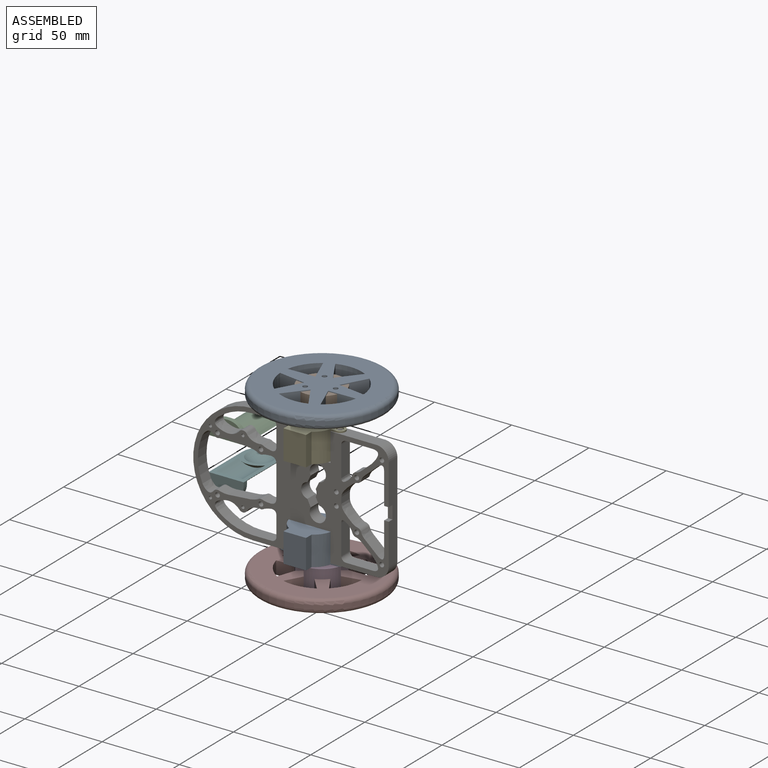
[diagram: assembled view]
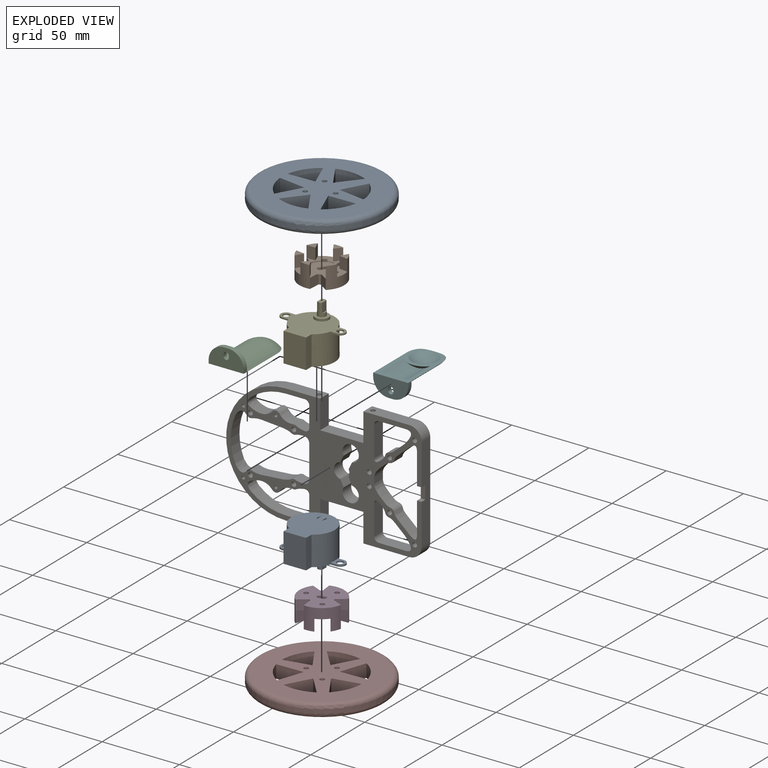
[diagram: exploded view]
GUIDED TOUR — MATED ASSEMBLY (Onshape document bb97a9f97f64db0c315202b3, AutoMate assembly bb97a9f97f64db0c315202b3_c42094e2cdb3be51faf808b6_38f69e9d4352762452701cad_default)

This assembly has 9 components, labeled P0..P8 below (a component is one placed occurrence of a part; the same part can appear more than once), held together by 10 mates. A mate is a constraint between two components; its type names the relative motion it leaves free:
  FASTENED — locks the two components together rigidly (no relative motion),
  REVOLUTE — leaves rotation about the listed axis free (a hinge).
Axis/direction vectors are unit vectors and 'through' points are millimeter coordinates, both in the assembly's world frame.

MATES
  1. FASTENED "Fastened 3": P6 <-> P2, direction (0.000, 1.000, 0.000) through (0.00, -35.30, 7.35) mm
  2. FASTENED "Fastened 1": P5 <-> P6, direction (0.000, -1.000, 0.000) through (0.00, -35.30, -29.05) mm
  3. REVOLUTE "Revolute 3": P0 <-> P6, axis (0.000, 0.000, 1.000) through (76.60, -39.30, -49.46) mm
  4. FASTENED "Fastened 2": P7 <-> P3, direction (0.000, 0.000, -1.000) through (59.10, -31.30, -60.46) mm
  5. REVOLUTE "Revolute 2": P0 <-> P6, axis (0.000, 0.000, 1.000) through (41.60, -39.30, -49.46) mm
  6. REVOLUTE "Revolute 4": P4 <-> P6, axis (0.000, 0.000, -1.000) through (76.60, -39.30, 27.76) mm
  7. REVOLUTE "Revolute 5": P4 <-> P6, axis (0.000, 0.000, -1.000) through (41.60, -39.30, 27.76) mm
  8. FASTENED "Fastened 2": P8 <-> P1, direction (0.000, 0.000, 1.000) through (59.10, -31.30, 38.76) mm
  9. REVOLUTE "Revolute 1": P4 <-> P1, axis (0.000, 0.000, 1.000) through (59.10, -31.30, 38.76) mm
  10. REVOLUTE "Revolute 1": P0 <-> P3, axis (0.000, 0.000, -1.000) through (59.10, -31.30, -60.46) mm

ASSEMBLY ORDER
  1. P0 — the base component [order heuristic]
  2. P3 — core [order heuristic]
  3. P7 — core [order heuristic]
  4. P6 [order verified]
  5. P4 — core [order heuristic]
  6. P1 — core [order heuristic]
  7. P8 — core [order heuristic]
  8. P2 [order verified]
  9. P5 [order verified]
Order-tag legend:
  [order verified] — this step's position reverses a verified removal order: the component was checked to insert without passing through the ones already placed.
  [order heuristic] — the first 6 components form the assembly's core: parts whose collision-free extraction could not be verified, listed in mate-graph order.

Of the 9 components, 2 carry the full construction recipe — the FeatureScript program that regenerates the part's solid from scratch; the rest are supplied as boundary geometry only.
Each toured component is shown spotlighted twice — in the assembled view, then in the exploded view, where a leader line traces a displaced component back to its assembled socket (saturated green if recipe-attached, orange if geometry-only; every other component desaturated gray) — followed by its recipe or geometry summary and the mates that hold it.
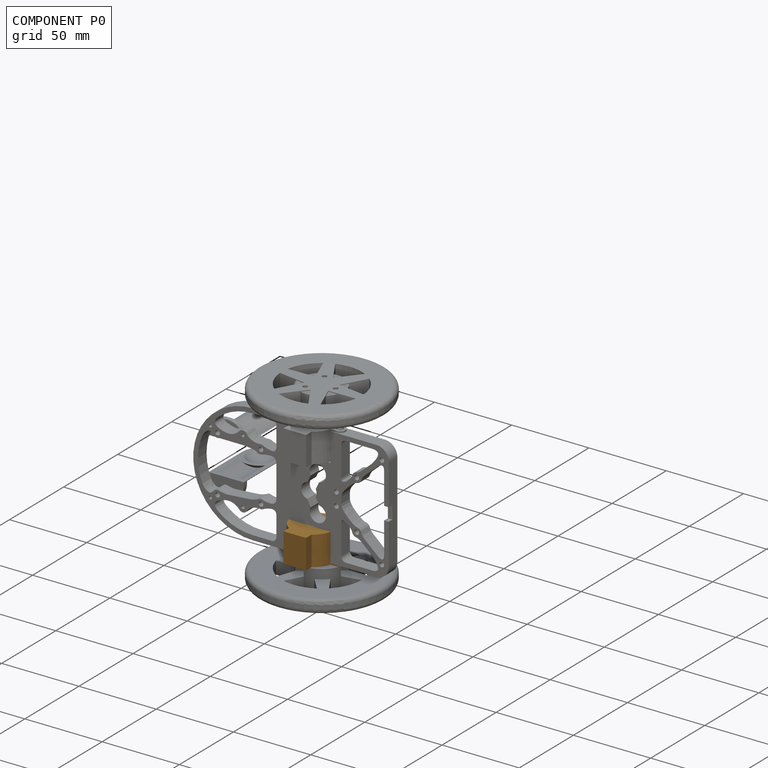
[diagram: component P0 — assembled]
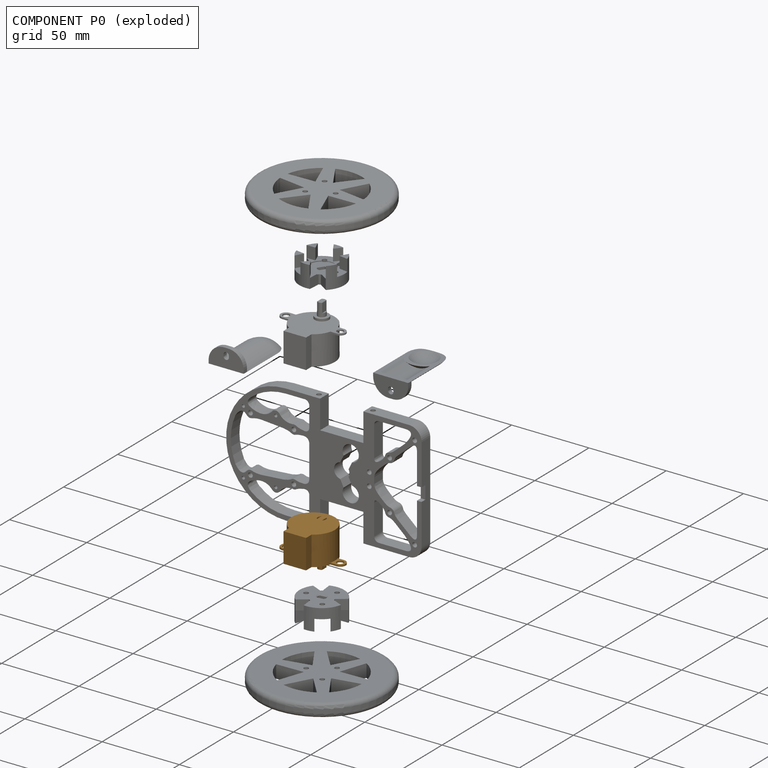
[diagram: component P0 — exploded]
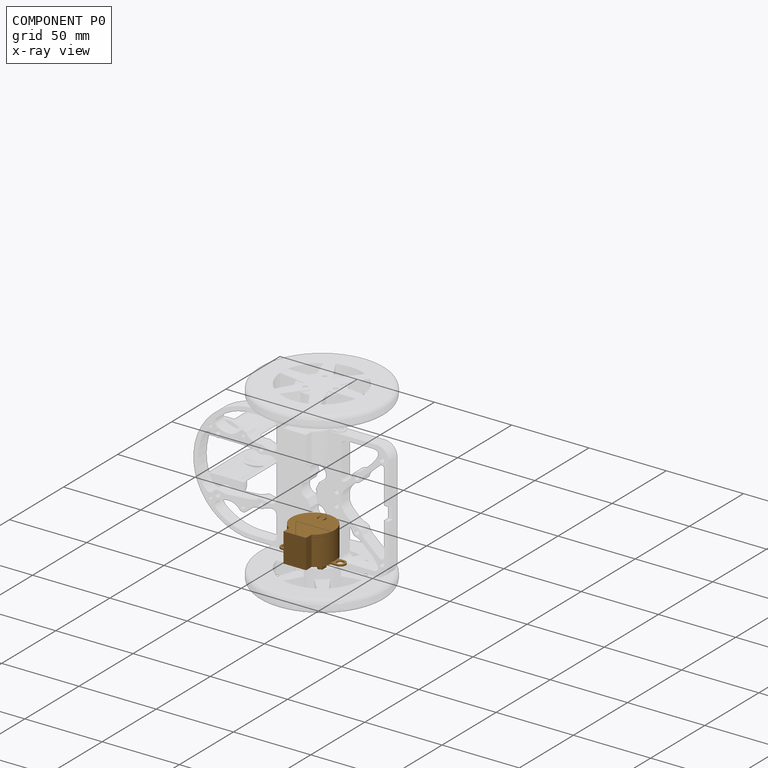
[diagram: component P0 — x-ray view]
COMPONENT P0 — geometry summary (no construction recipe available for this part):
  bounding box: 42.0 x 31.0 x 29.0 mm
  B-rep topology: 1 solid, 30 faces, 144 edges
  volume: 12910 mm^3 (34% of its bounding box)
  symmetry: mirror-symmetric across its x mid-plane
Held by: REVOLUTE mate "Revolute 3" to P6; REVOLUTE mate "Revolute 2" to P6; REVOLUTE mate "Revolute 1" to P3.
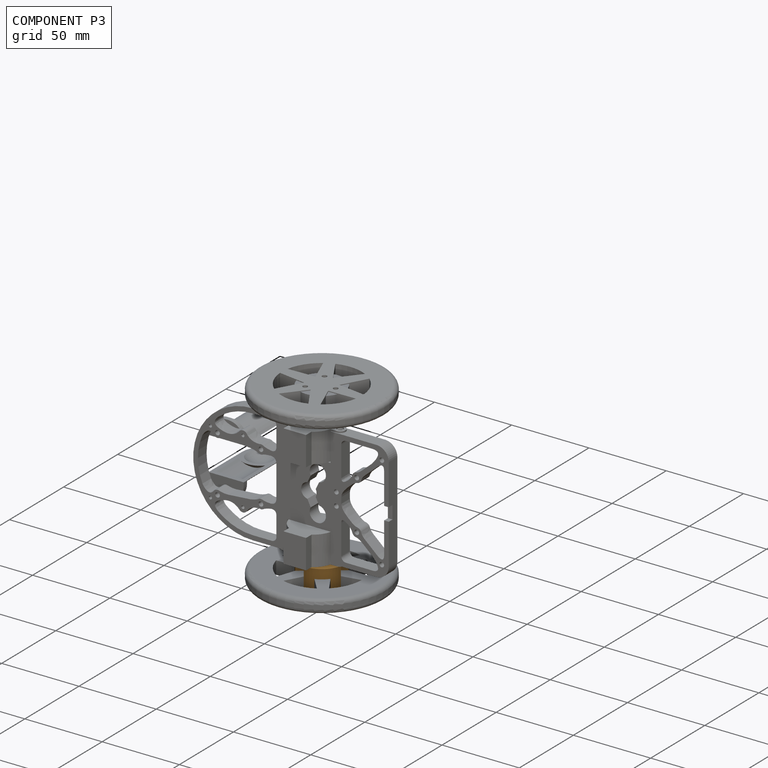
[diagram: component P3 — assembled]
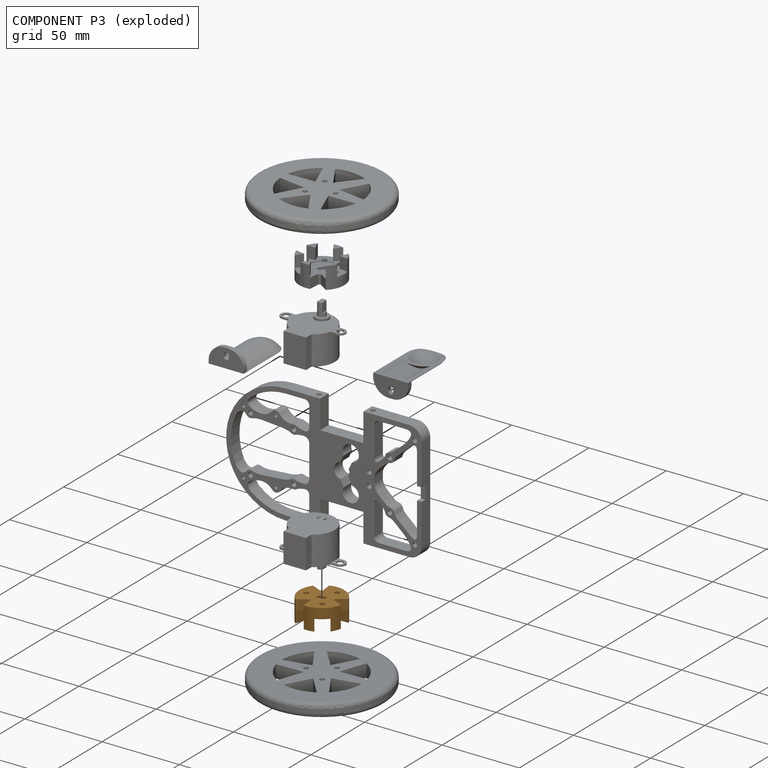
[diagram: component P3 — exploded]
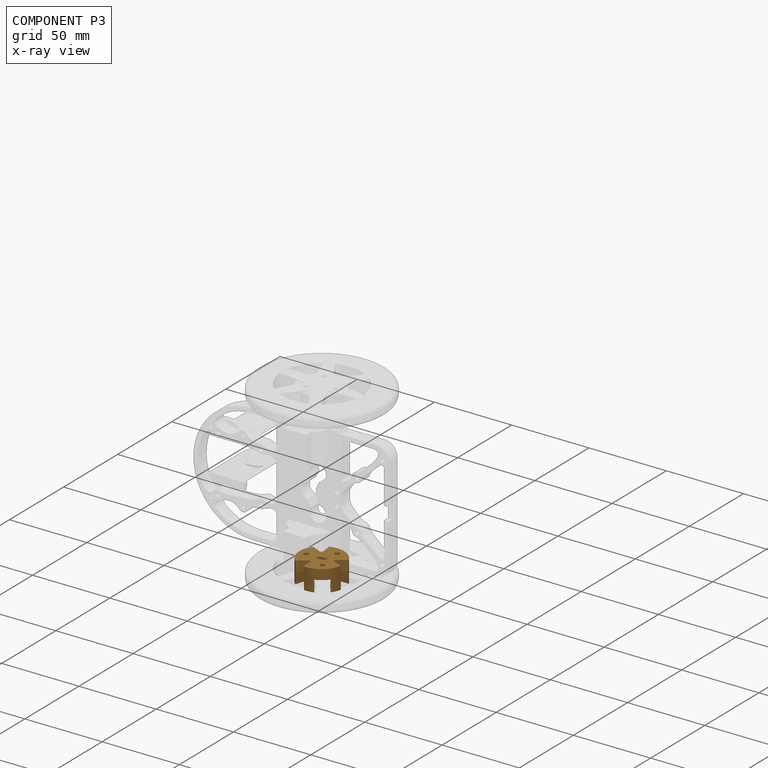
[diagram: component P3 — x-ray view]
COMPONENT P3 — geometry summary (no construction recipe available for this part):
  bounding box: 29.0 x 28.4 x 14.0 mm
  B-rep topology: 1 solid, 52 faces, 298 edges
  volume: 4022 mm^3 (35% of its bounding box)
  symmetry: mirror-symmetric across its x mid-plane
Held by: FASTENED mate "Fastened 2" to P7; REVOLUTE mate "Revolute 1" to P0.
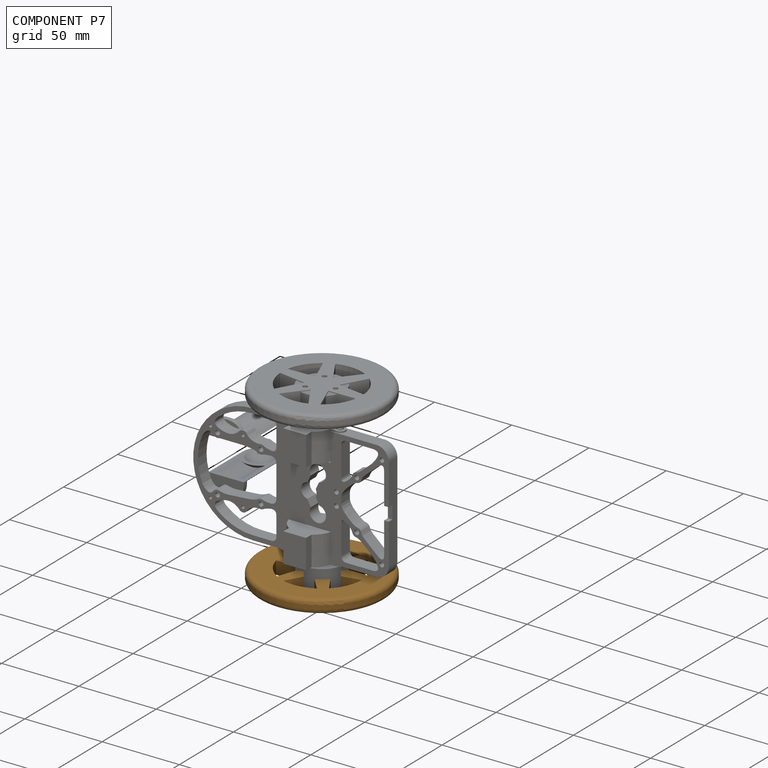
[diagram: component P7 — assembled]
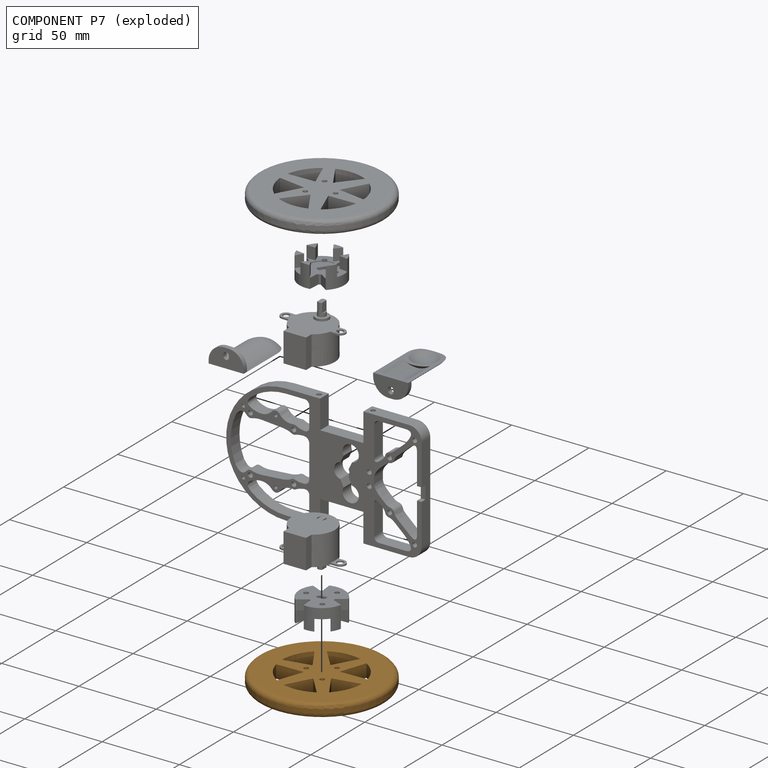
[diagram: component P7 — exploded]
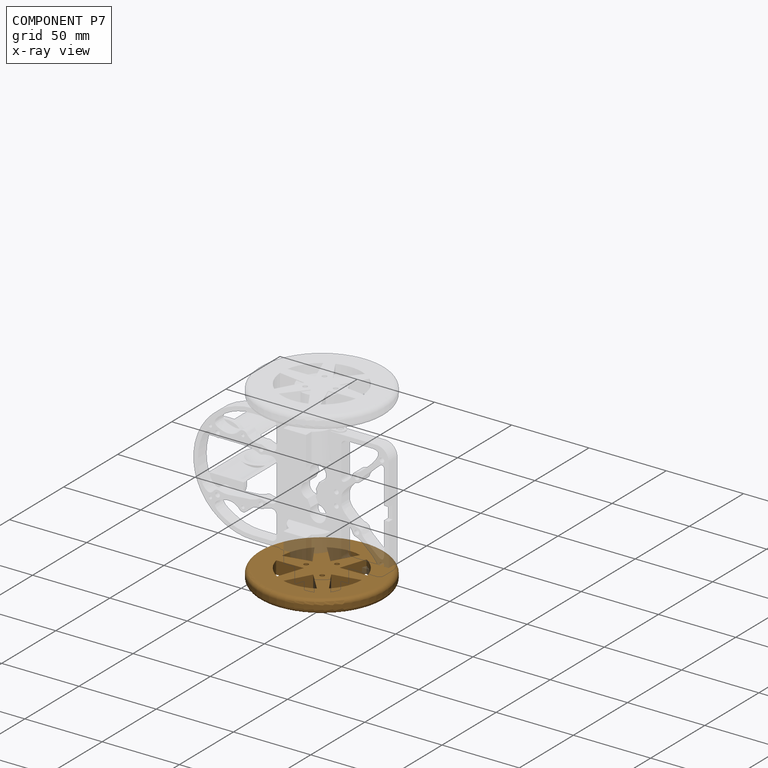
[diagram: component P7 — x-ray view]
COMPONENT P7 — geometry summary (no construction recipe available for this part):
  bounding box: 88.3 x 88.3 x 8.5 mm
  B-rep topology: 1 solid, 26 faces, 140 edges
  volume: 34452 mm^3 (52% of its bounding box)
  symmetry: 2-fold rotationally symmetric about the y axis; 3-fold rotationally symmetric about the z axis; mirror-symmetric across its x mid-plane, z mid-plane
Held by: FASTENED mate "Fastened 2" to P3.
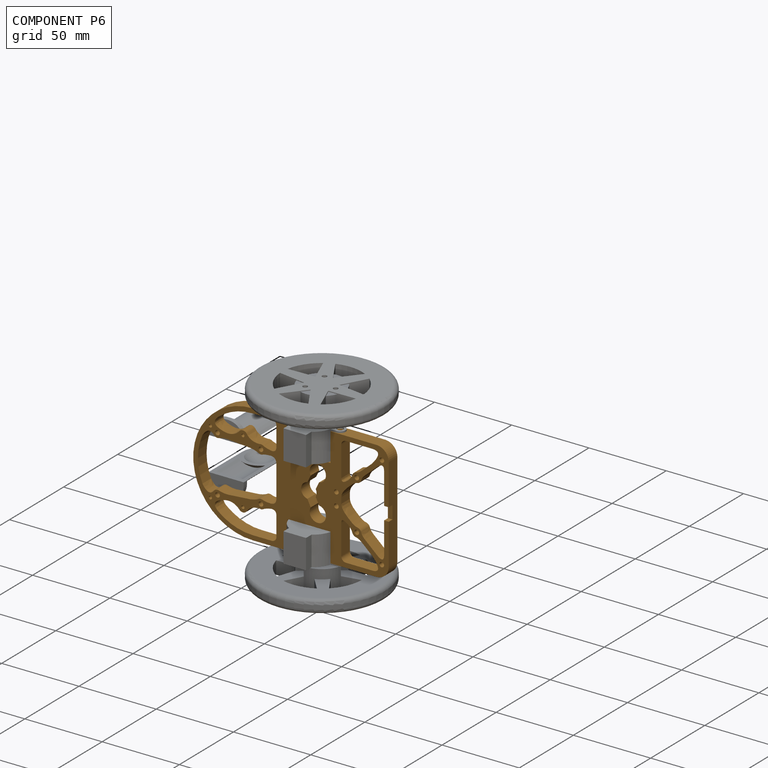
[diagram: component P6 — assembled]
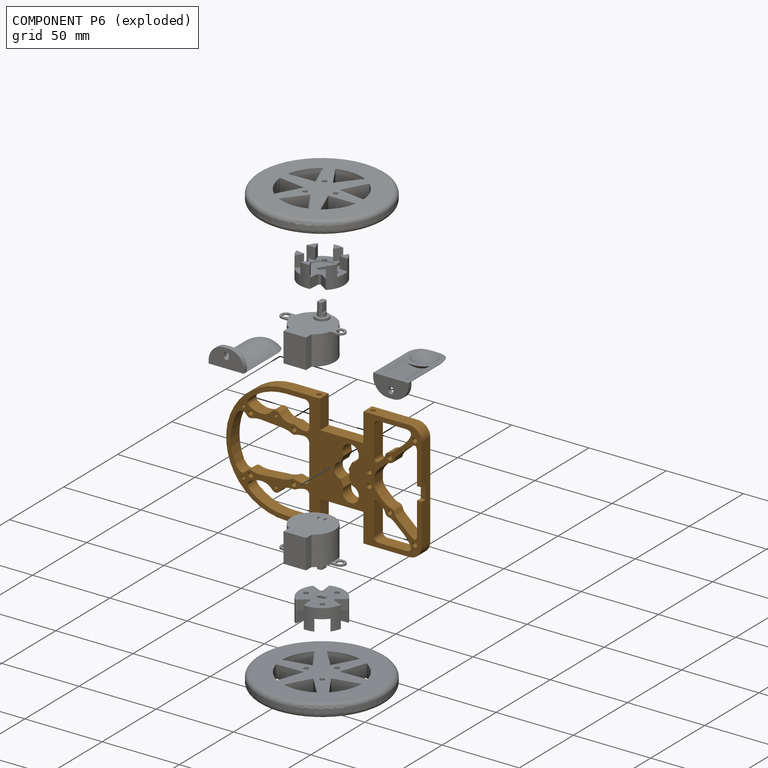
[diagram: component P6 — exploded]
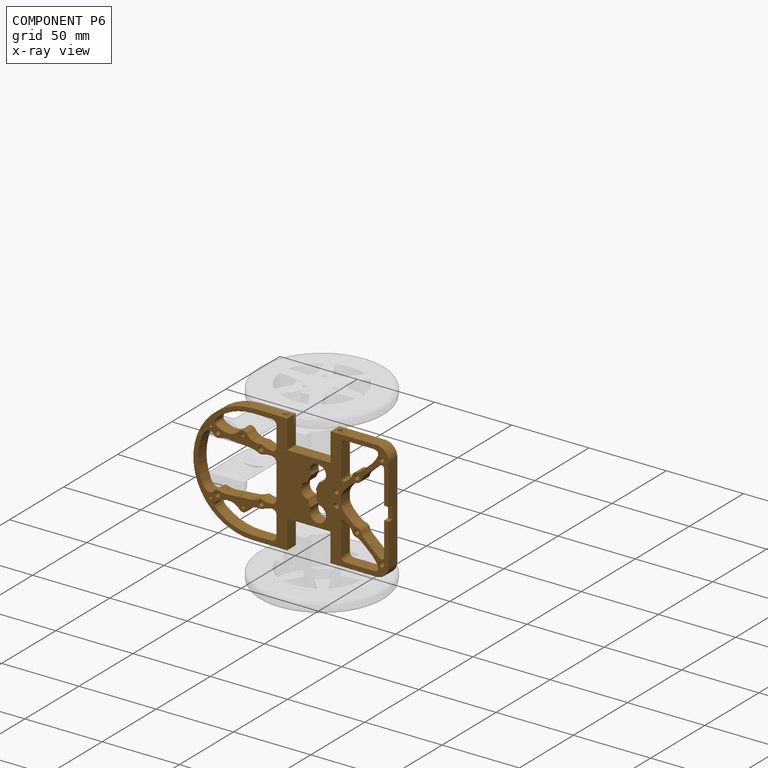
[diagram: component P6 — x-ray view]
COMPONENT P6 — geometry summary (no construction recipe available for this part):
  bounding box: 126.5 x 77.2 x 8.0 mm
  B-rep topology: 1 solid, 129 faces, 738 edges
  volume: 27150 mm^3 (35% of its bounding box)
  symmetry: mirror-symmetric across its y mid-plane
Held by: FASTENED mate "Fastened 3" to P2; FASTENED mate "Fastened 1" to P5; REVOLUTE mate "Revolute 3" to P0; REVOLUTE mate "Revolute 2" to P0; REVOLUTE mate "Revolute 4" to P4; REVOLUTE mate "Revolute 5" to P4.
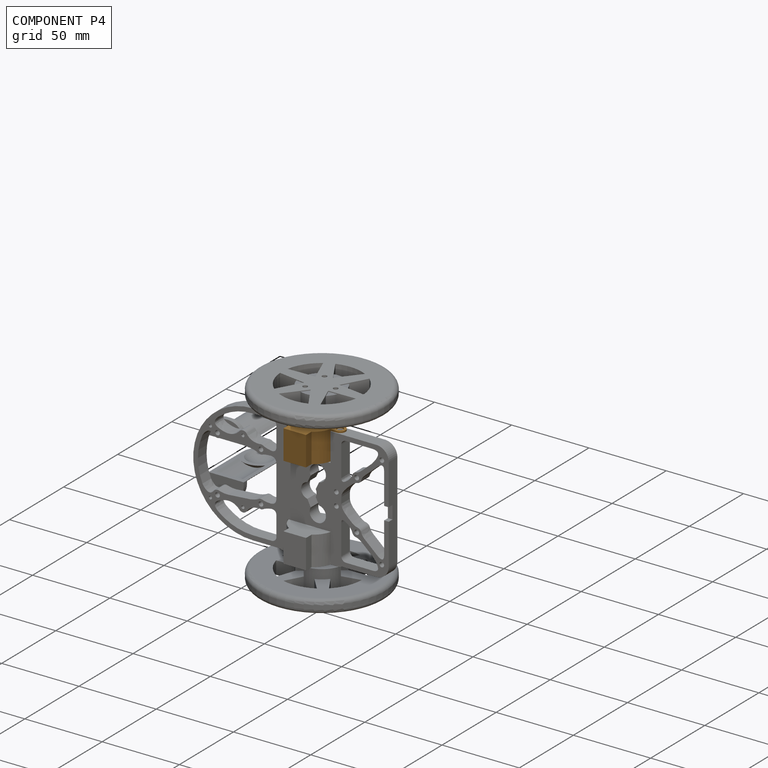
[diagram: component P4 — assembled]
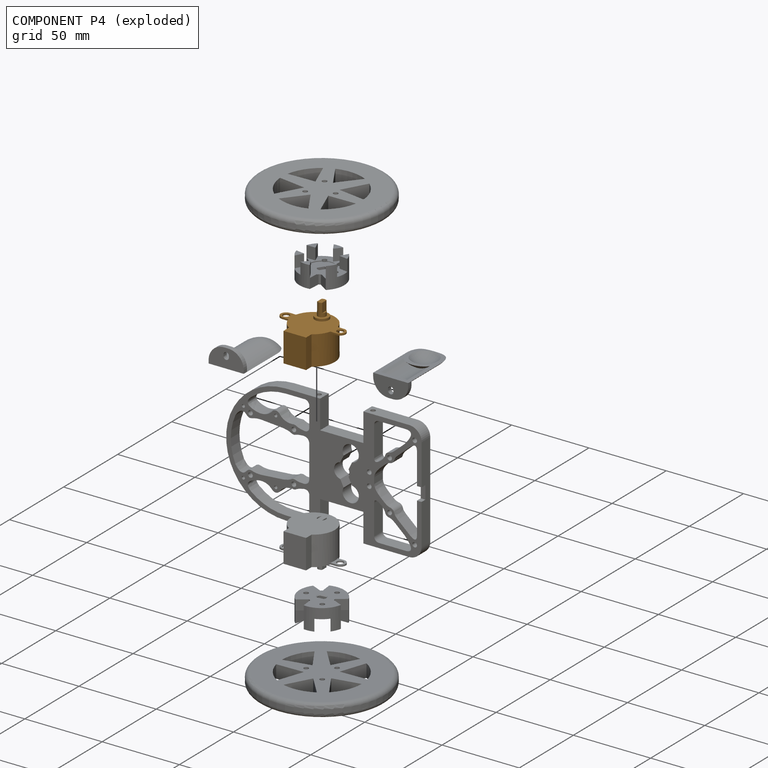
[diagram: component P4 — exploded]
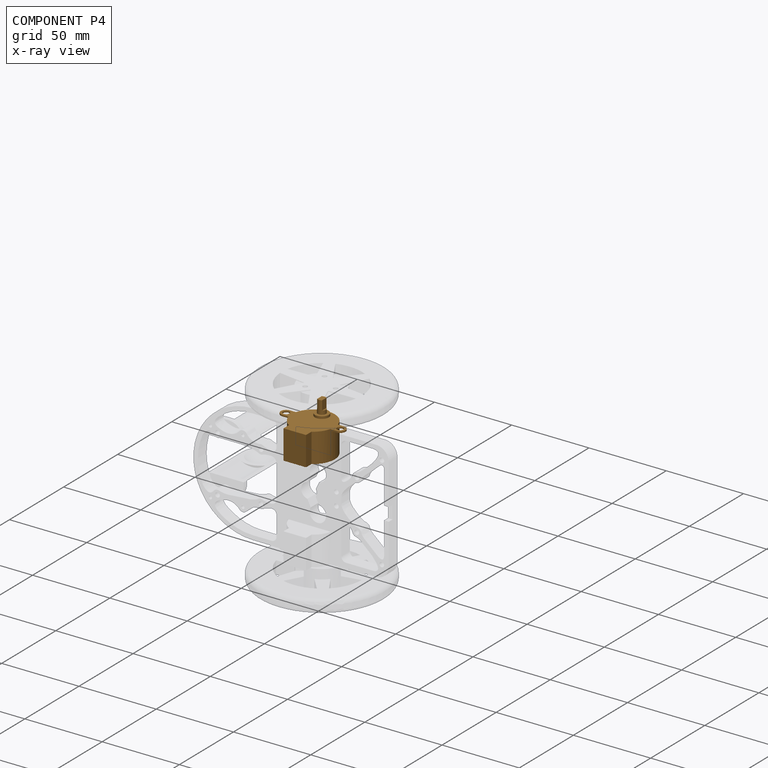
[diagram: component P4 — x-ray view]
COMPONENT P4 — geometry summary (no construction recipe available for this part):
  bounding box: 42.0 x 31.0 x 29.0 mm
  B-rep topology: 1 solid, 30 faces, 144 edges
  volume: 12910 mm^3 (34% of its bounding box)
  symmetry: mirror-symmetric across its x mid-plane
Held by: REVOLUTE mate "Revolute 4" to P6; REVOLUTE mate "Revolute 5" to P6; REVOLUTE mate "Revolute 1" to P1.
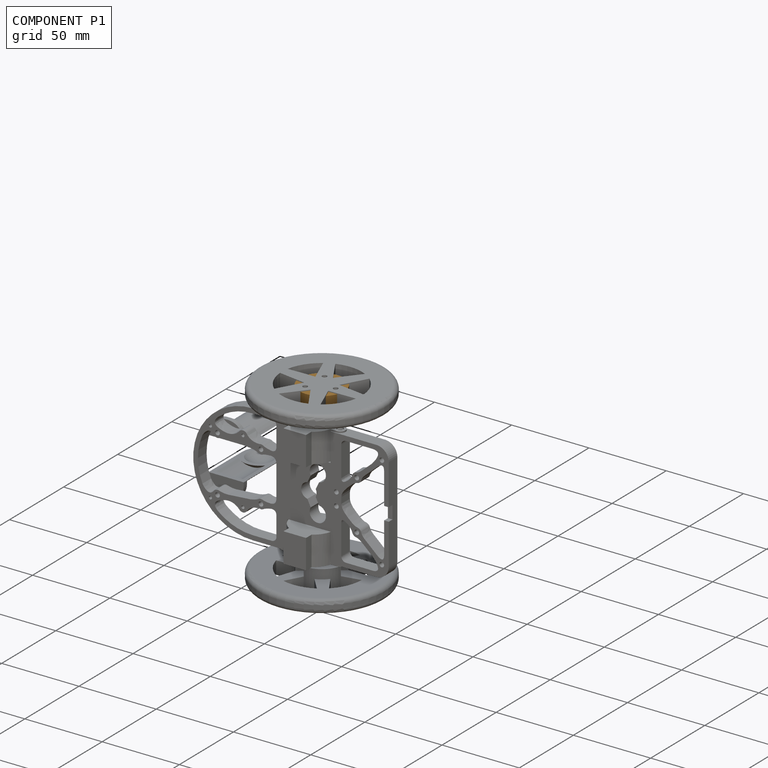
[diagram: component P1 — assembled]
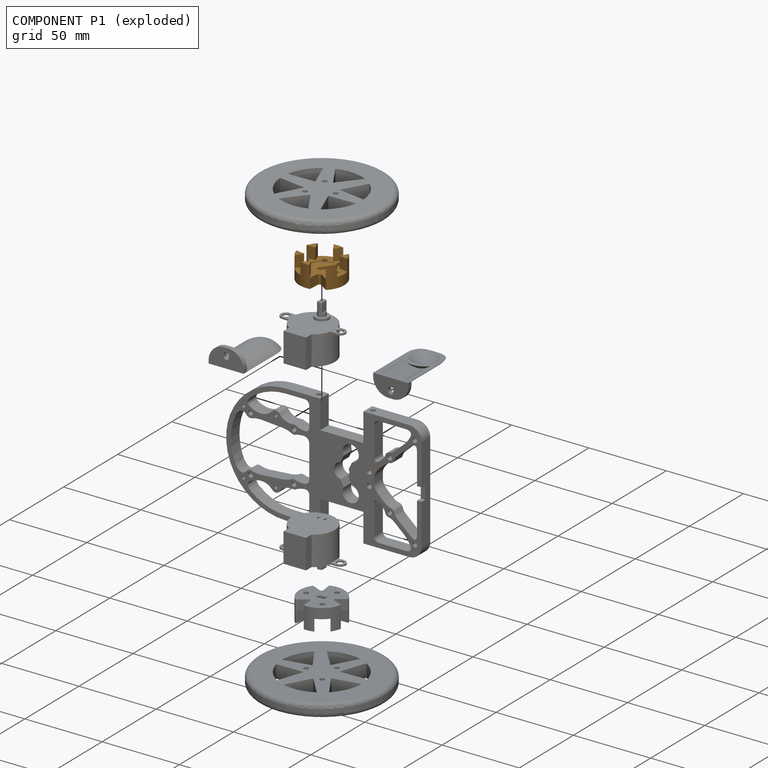
[diagram: component P1 — exploded]
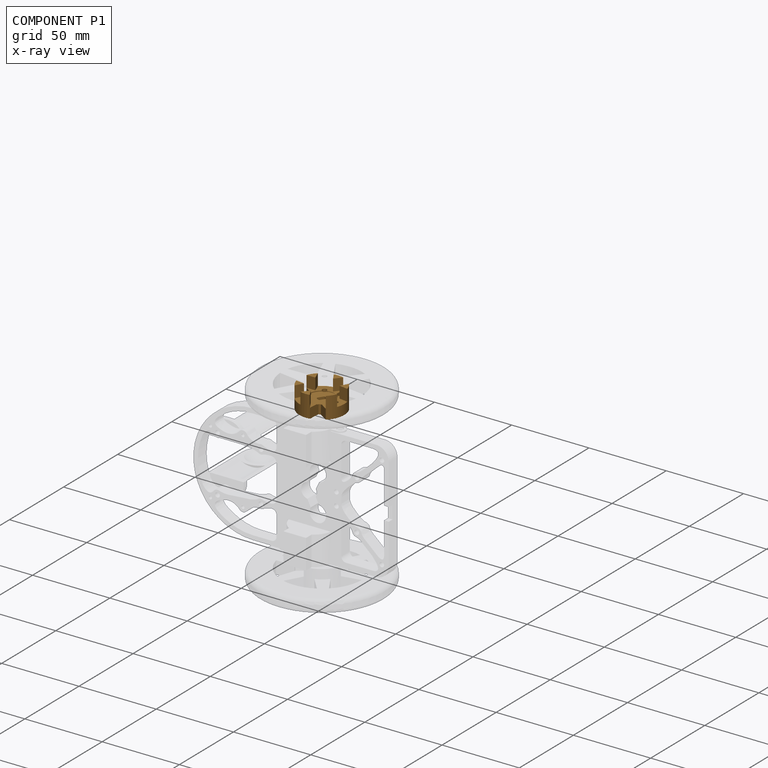
[diagram: component P1 — x-ray view]
COMPONENT P1 — geometry summary (no construction recipe available for this part):
  bounding box: 29.0 x 28.4 x 14.0 mm
  B-rep topology: 1 solid, 52 faces, 298 edges
  volume: 4022 mm^3 (35% of its bounding box)
  symmetry: mirror-symmetric across its x mid-plane
Held by: FASTENED mate "Fastened 2" to P8; REVOLUTE mate "Revolute 1" to P4.
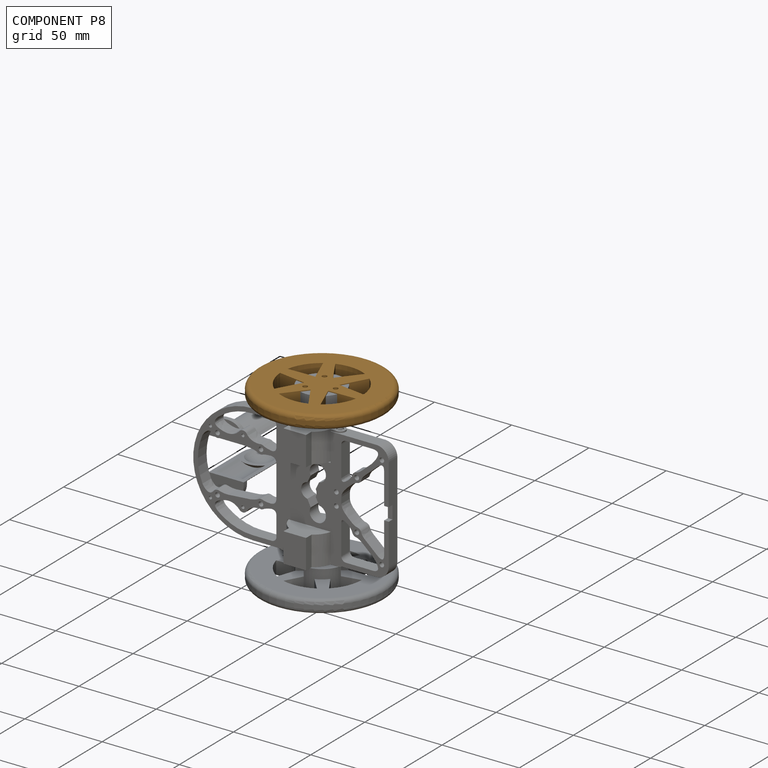
[diagram: component P8 — assembled]
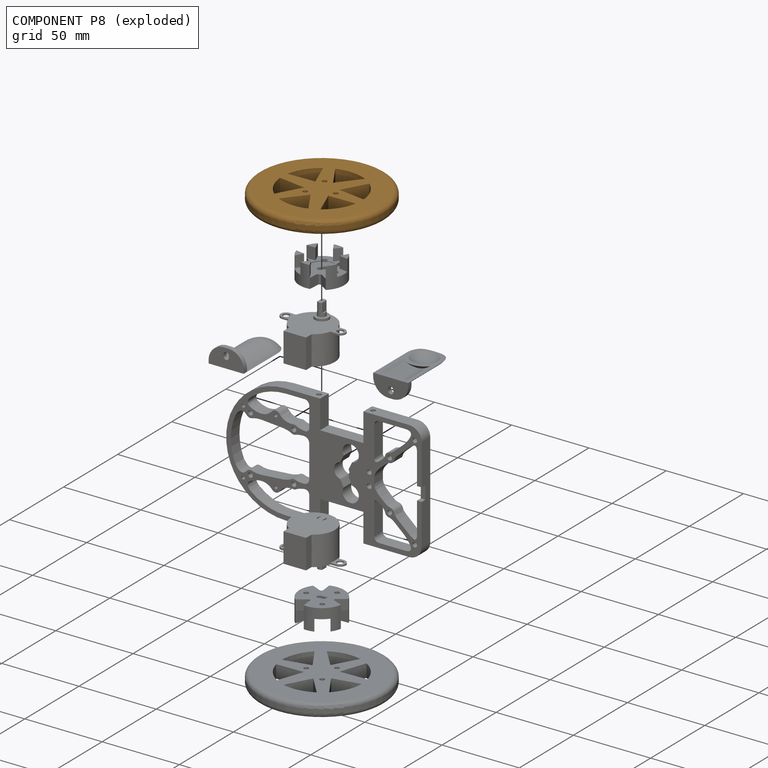
[diagram: component P8 — exploded]
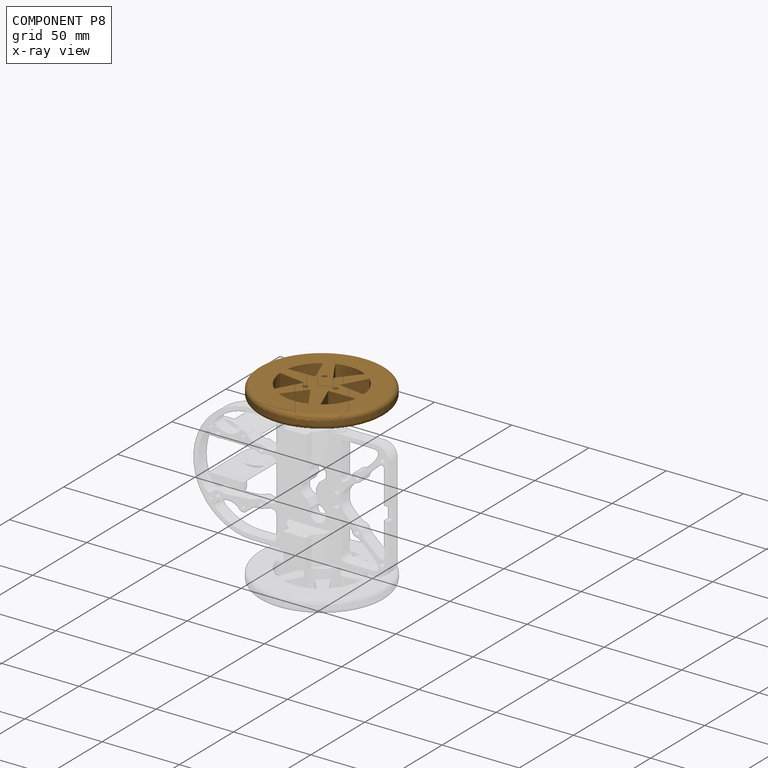
[diagram: component P8 — x-ray view]
COMPONENT P8 — geometry summary (no construction recipe available for this part):
  bounding box: 88.3 x 88.3 x 8.5 mm
  B-rep topology: 1 solid, 26 faces, 140 edges
  volume: 34452 mm^3 (52% of its bounding box)
  symmetry: 2-fold rotationally symmetric about the y axis; 3-fold rotationally symmetric about the z axis; mirror-symmetric across its x mid-plane, z mid-plane
Held by: FASTENED mate "Fastened 2" to P1.
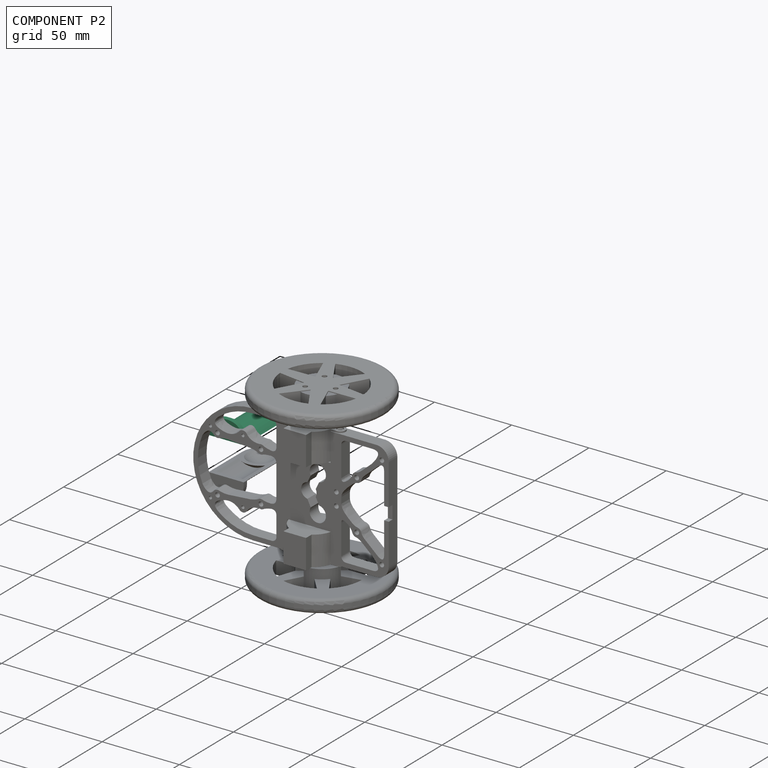
[diagram: component P2 — assembled]
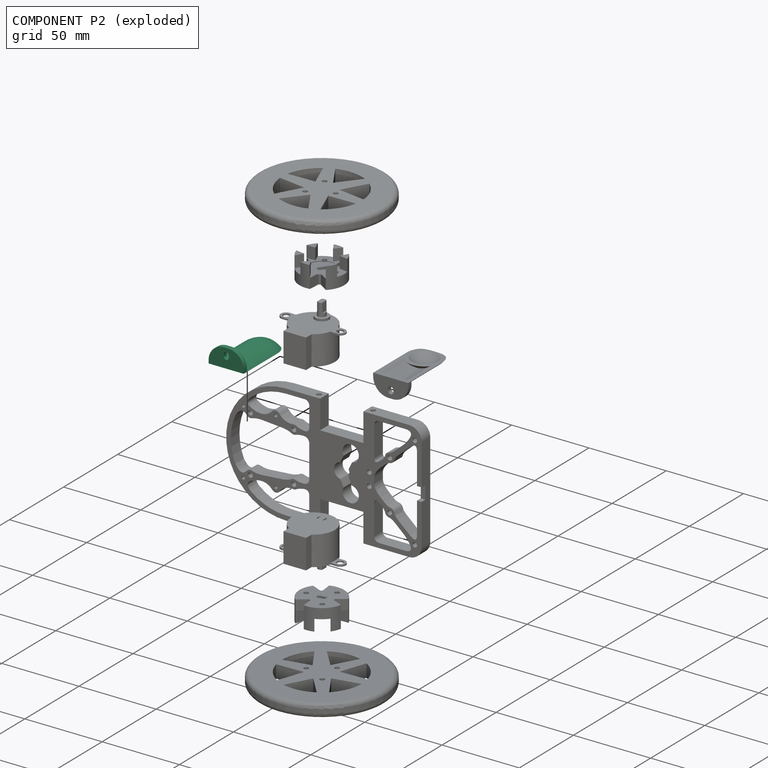
[diagram: component P2 — exploded]
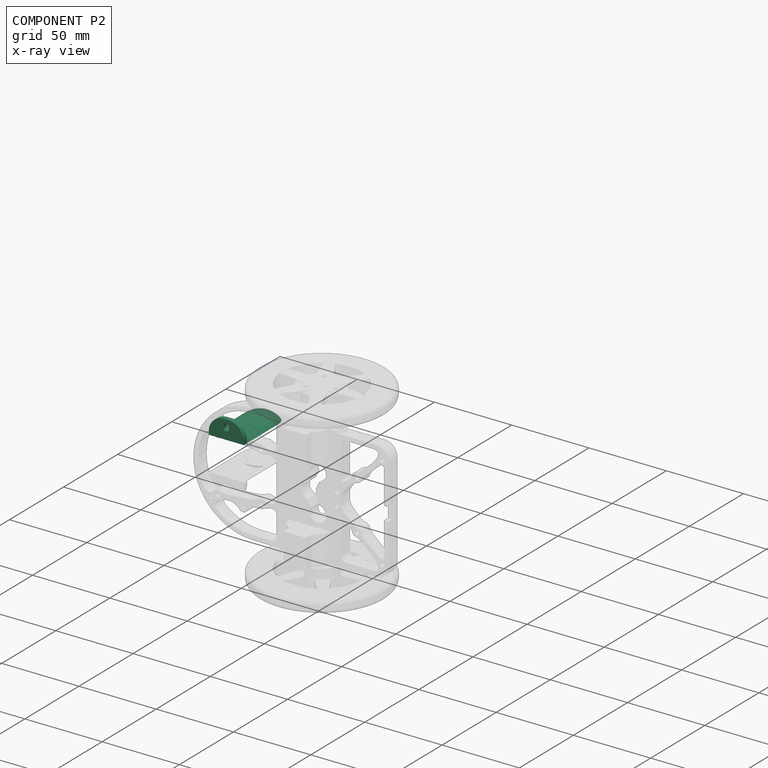
[diagram: component P2 — x-ray view]
COMPONENT P2 — recipe-attached (CADFS 00788652, mesh-verified: the recipe's output STEP matches this component's geometry to below the mesh-comparison resolution (tessellation chordal tolerance ~0.072 mm)).
Held by: FASTENED mate "Fastened 3" to P6.
Construction recipe (FeatureScript — the CAD program that rebuilds this solid; sketch coordinates are in the units given by the * unit suffixes, e.g. mm):

FeatureScript 1511;
import(path : "onshape/std/geometry.fs", version : "1511.0");
import(path : "onshape/std/common.fs", version : "1511.0");
const mm = millimeter;
const VERTEX = EntityType.VERTEX;
const EDGE = EntityType.EDGE;
const FACE = EntityType.FACE;
const BODY = EntityType.BODY;
function v(x, y){return vector(x, y);}
function OD(order){return orderDisambiguation(order);}
function OSD(set){return originalSetDisambiguation(set);}
function TD(topology){return topologyDisambiguation(topology);}
function TDD(query){return trueDependencyDisambiguation(query);}
function sQuery(a, b, c) {return sketchEntityQuery(a, b, c);}

annotation { "Feature Type Name" : "Feature", "Feature Type Description" : "" }
export const myFeature = defineFeature(function(context is Context, id is Id, definition is map)
    precondition{}
    {
        {
            var Q0;
            Q0=qCreatedBy(makeId("Front.planeOp"),FACE);
            var sketch = newSketch(context, id + "F0", { "sketchPlane" : qUnion([Q0])});
            skArc(sketch, "E0", {"start": v(8.5, 0) * mm, "mid": v(0, 3.1) * mm, "end": v(-8.5, 0) * mm});
            skLineSegment(sketch, "E1", {"start": v(-8.5, 0) * mm, "end": v(8.5, 0) * mm, "construction": true});
            skArc(sketch, "E2.0", {"start": v(11.36, 0) * mm, "mid": v(0, 5.1) * mm, "end": v(-11.36, 0) * mm});
            skLineSegment(sketch, "E3", {"start": v(-11.36, 0) * mm, "end": v(-8.5, 0) * mm});
            skLineSegment(sketch, "E4", {"start": v(8.5, 0) * mm, "end": v(11.36, 0) * mm});
            skLineSegment(sketch, "E5", {"start": v(-1.88, -10.1) * mm, "end": v(2.05, -10.1) * mm, "construction": true});
            skLineSegment(sketch, "E6.bottom", {"start": v(-11.36, 0) * mm, "end": v(11.36, 0) * mm});
            skLineSegment(sketch, "E6.top", {"start": v(-11.36, -4) * mm, "end": v(11.36, -4) * mm});
            skLineSegment(sketch, "E6.left", {"start": v(-11.36, 0) * mm, "end": v(-11.36, -4) * mm});
            skLineSegment(sketch, "E6.right", {"start": v(11.36, 0) * mm, "end": v(11.36, -4) * mm});
            skPoint(sketch, "E7", {"position": v(0, 5.1) * mm});
            skSolve(sketch);
        }
        {
            var Q0;
            Q0=makeQuery(id+"F0.imprint","IMPRINT",FACE,{"disambiguationData":[TD([[makeQuery(id+"F0.imprint","IMPRINT",EDGE,{"derivedFrom":sQuery(id+"F0.wireOp",EDGE,"E0")}),-1.0]])]});
            var Q1;
            Q1=sQuery(id+"F0.wireOp",EDGE,"E5");
            revolve(context, id + "F1", {"surfaceOperationType" : NewSurfaceOperationType.NEW, "entities" : qUnion([Q0]), "axis" : qUnion([Q1]), "revolveType" : RevolveType.SYMMETRIC, "angle" : 100 * degree});
        }
        {
            var Q0;
            Q0=makeQuery(id+"F0.imprint","IMPRINT",FACE,{"disambiguationData":[TD([[makeQuery(id+"F0.imprint","IMPRINT",EDGE,{"derivedFrom":sQuery(id+"F0.wireOp",EDGE,"E3")}),-1.0]])]});
            extrude(context, id + "F2", {"entities" : qUnion([Q0]), "operationType" : NewBodyOperationType.REMOVE, "endBound" : BoundingType.SYMMETRIC, "depth" : 25 * mm, "offsetDistance" : 25 * mm});
        }
        {
            var Q0;
            Q0=makeQuery(id+"F0.imprint","IMPRINT",FACE,{"disambiguationData":[TD([[makeQuery(id+"F0.imprint","IMPRINT",EDGE,{"derivedFrom":sQuery(id+"F0.wireOp",EDGE,"E0")}),-1.0]])]});
            extrude(context, id + "F3", {"entities" : qUnion([Q0]), "operationType" : NewBodyOperationType.ADD, "depth" : 44 * mm - 12.7 * mm, "offsetDistance" : 25 * mm});
        }
        {
            var Q0;
            Q0=qCreatedBy(makeId("Top.planeOp"),FACE);
            var sketch = newSketch(context, id + "F4", { "sketchPlane" : qUnion([Q0])});
            skLineSegment(sketch, "E8.bottom", {"start": v(-11.36, -31.3) * mm, "end": v(11.36, -31.3) * mm});
            skLineSegment(sketch, "E8.top", {"start": v(-11.36, -28.3) * mm, "end": v(11.36, -28.3) * mm});
            skLineSegment(sketch, "E8.left", {"start": v(-11.36, -31.3) * mm, "end": v(-11.36, -28.3) * mm});
            skLineSegment(sketch, "E8.right", {"start": v(11.36, -31.3) * mm, "end": v(11.36, -28.3) * mm});
            skSolve(sketch);
        }
        {
            var Q0;
            Q0=makeQuery(id+"F4.imprint","IMPRINT",FACE,{"disambiguationData":[TD([[makeQuery(id+"F4.imprint","IMPRINT",EDGE,{"derivedFrom":sQuery(id+"F4.wireOp",EDGE,"E8.bottom")}),1.0]])]});
            extrude(context, id + "F5", {"entities" : qUnion([Q0]), "operationType" : NewBodyOperationType.ADD, "depth" : 5.1 * mm + 7 * mm, "offsetDistance" : 25 * mm});
        }
        {
            var Q0;
            Q0=makeQuery(id+"F5.boolean.opBoolean","MERGE",FACE,{"derivedFrom":[makeQuery(id+"F3.opExtrude","CAP_FACE",FACE,{"disambiguationData":[OSD([sQuery(id+"F0.wireOp",EDGE,"E0"),sQuery(id+"F0.wireOp",EDGE,"E2.0"),sQuery(id+"F0.wireOp",EDGE,"E3"),sQuery(id+"F0.wireOp",EDGE,"E4")])],"isStart":false}),makeQuery(id+"F5.opExtrude","SWEPT_FACE",FACE,{"disambiguationData":[OSD([sQuery(id+"F4.wireOp",EDGE,"E8.bottom")])]})]});
            var sketch = newSketch(context, id + "F6", { "sketchPlane" : qUnion([Q0])});
            skArc(sketch, "E9", {"start": v(1.75, 7.85) * mm, "mid": v(0, 9.6) * mm, "end": v(-1.75, 7.85) * mm});
            skArc(sketch, "E10", {"start": v(-1.75, 6.85) * mm, "mid": v(0, 5.1) * mm, "end": v(1.75, 6.85) * mm});
            skLineSegment(sketch, "E11", {"start": v(-1.75, 7.85) * mm, "end": v(-1.75, 6.85) * mm});
            skLineSegment(sketch, "E12", {"start": v(1.75, 7.85) * mm, "end": v(1.75, 6.85) * mm});
            skSolve(sketch);
        }
        {
            var Q0;
            Q0=makeQuery(id+"F6.imprint","IMPRINT",FACE,{"disambiguationData":[TD([[makeQuery(id+"F6.imprint","IMPRINT",EDGE,{"derivedFrom":sQuery(id+"F6.wireOp",EDGE,"E9")}),1.0]])]});
            extrude(context, id + "F7", {"entities" : qUnion([Q0]), "operationType" : NewBodyOperationType.REMOVE, "endBound" : BoundingType.THROUGH_ALL, "oppositeDirection" : true, "depth" : 25 * mm, "offsetDistance" : 25 * mm});
        }
        {
            var Q0;
            Q0=makeQuery(id+"F5.opExtrude","CAP_EDGE",EDGE,{"disambiguationData":[OSD([sQuery(id+"F4.wireOp",EDGE,"E8.left")])],"isStart":false});
            var Q1;
            Q1=makeQuery(id+"F5.opExtrude","CAP_EDGE",EDGE,{"disambiguationData":[OSD([sQuery(id+"F4.wireOp",EDGE,"E8.right")])],"isStart":false});
            fillet(context, id + "F8", {"entities" : qUnion([Q0, Q1]), "radius" : 10 * mm, "tangentPropagation" : true, "allowEdgeOverflow" : false});
        }
        {
            var Q0;
            Q0=qCreatedBy(makeId("Top.planeOp"),FACE);
            var sketch = newSketch(context, id + "F9", { "sketchPlane" : qUnion([Q0])});
            skLineSegment(sketch, "E13.bottom", {"start": v(-6.6, 11.36) * mm, "end": v(6.6, 11.36) * mm});
            skLineSegment(sketch, "E13.top", {"start": v(-6.6, 9.25) * mm, "end": v(6.6, 9.25) * mm});
            skLineSegment(sketch, "E13.left", {"start": v(-6.6, 11.36) * mm, "end": v(-6.6, 9.25) * mm});
            skLineSegment(sketch, "E13.right", {"start": v(6.6, 11.36) * mm, "end": v(6.6, 9.25) * mm});
            skSolve(sketch);
        }
        {
            var Q0;
            Q0=makeQuery(id+"F9.imprint","IMPRINT",FACE,{"disambiguationData":[TD([[makeQuery(id+"F9.imprint","IMPRINT",EDGE,{"derivedFrom":sQuery(id+"F9.wireOp",EDGE,"E13.bottom")}),-1.0]])]});
            extrude(context, id + "F10", {"entities" : qUnion([Q0]), "operationType" : NewBodyOperationType.REMOVE, "depth" : 25 * mm, "offsetDistance" : 25 * mm});
        }
        {
            var Q0;
            {var subQ2=sQuery(id+"F0.wireOp",EDGE,"E2.0");Q0=makeQuery(id+"F10.boolean.opBoolean","INTERSECT",EDGE,{"derivedFrom":[makeQuery(id+"F3.boolean.opBoolean","SPLIT",FACE,{"disambiguationData":[TD([makeQuery(id+"F3.opExtrude","SWEPT_FACE",FACE,{"disambiguationData":[OSD([subQ2])]})])],"derivedFrom":makeQuery(id+"F1.opRevolve","SWEPT_FACE",FACE,{"disambiguationData":[OSD([subQ2])]})}),makeQuery(id+"F10.opExtrude","SWEPT_FACE",FACE,{"disambiguationData":[OSD([sQuery(id+"F9.wireOp",EDGE,"E13.top")])]})]});}
            fillet(context, id + "F11", {"entities" : qUnion([Q0]), "radius" : 5 * mm, "tangentPropagation" : true, "allowEdgeOverflow" : false});
        }
    });
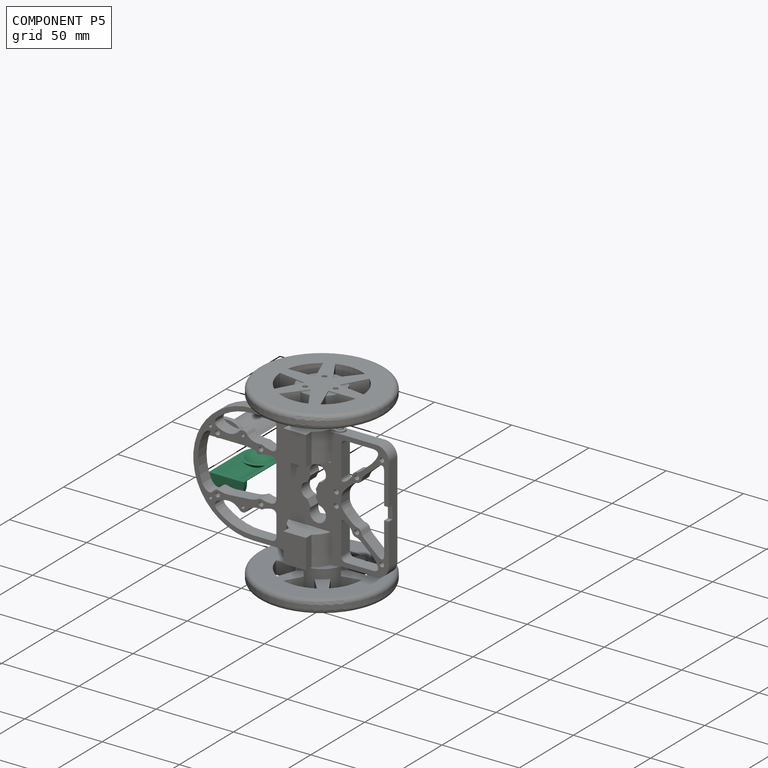
[diagram: component P5 — assembled]
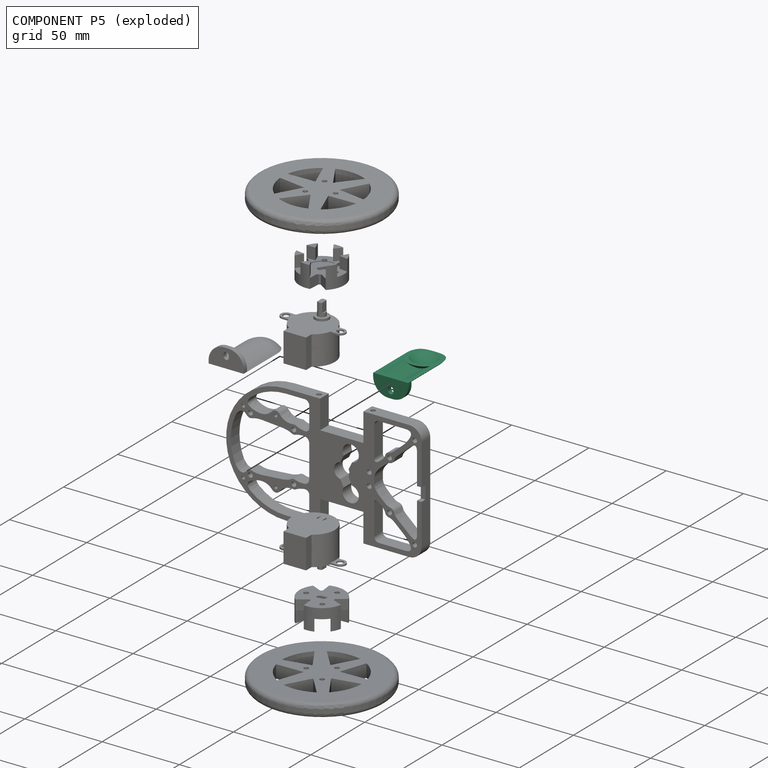
[diagram: component P5 — exploded]
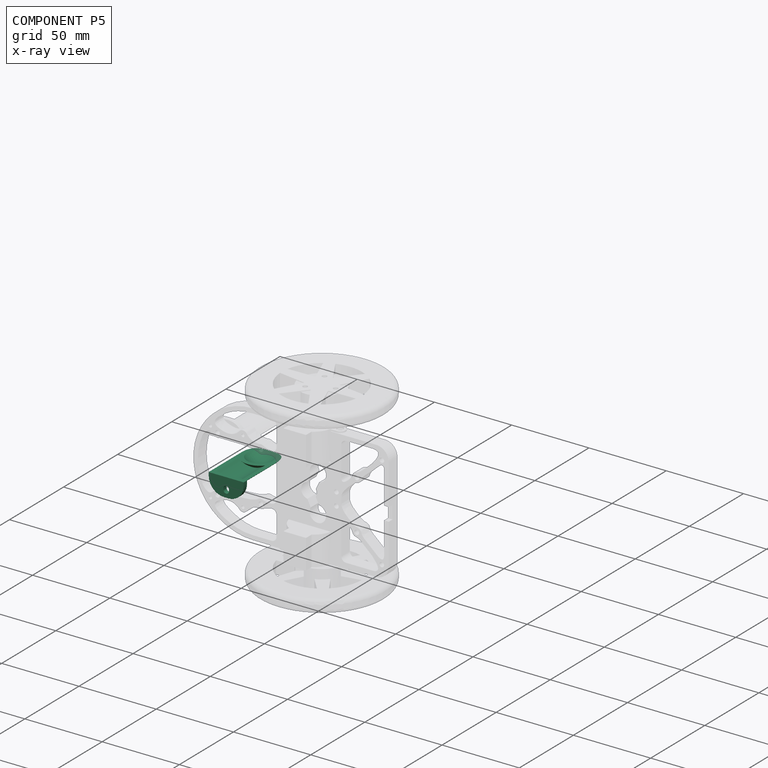
[diagram: component P5 — x-ray view]
COMPONENT P5 — same part as P2 (CADFS 00788652); its construction recipe is shown at P2.
Held by: FASTENED mate "Fastened 1" to P6.
PROVENANCE & LICENSES
Assembly (occurrences, transforms, mates, per-part STEP geometry): AutoMate dataset, Zenodo record 7776208, CC0.
Construction recipes: CADFS (HuggingFace VladPyatov/CADFS, CC-BY-4.0, layered over the ABC dataset), FeatureScript reconstruction programs keyed by ABC model id.
Join: ABC meta listings map ABC model id -> Onshape documentId; within a shared document, parts are matched by geometric signature (bounding-box dims + volume at 0.1% relative tolerance, exact B-rep face/solid counts).
Verification: 2 of this assembly's 9 components carry a recipe attachment, and every attachment is mesh-verified: the CADFS STEP and the AutoMate member STEP were compared as meshes in their shared local frame (symmetric sampled-point-to-mesh distance); worst across the 2 attachments: below the mesh-comparison resolution (tessellation chordal tolerance ~0.072 mm) on a 48 mm part.
Renders: orthographic iso camera (az 35 / el 25); the floor grid conveys scale (grid pitch printed in each image; no ruler). In the exploded view each component is displaced by its stored offset vector: the offsets alone carry the explosion direction (mate normal/axis signs are not orientation cues and do not encode it), and separation distances are assigned per mate-chain, not proportionally to assembly-order depth.
